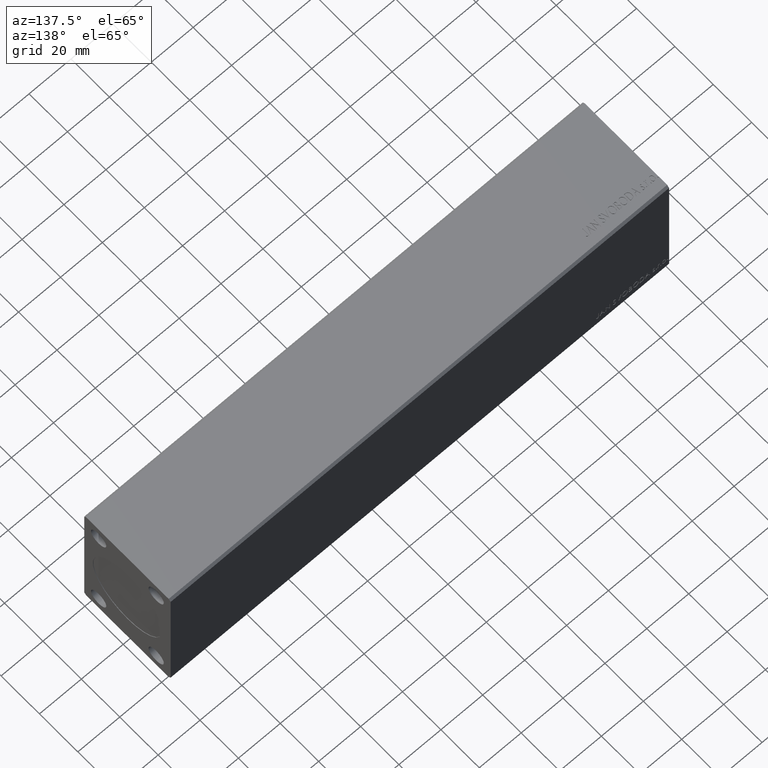
[diagram: clean part render]
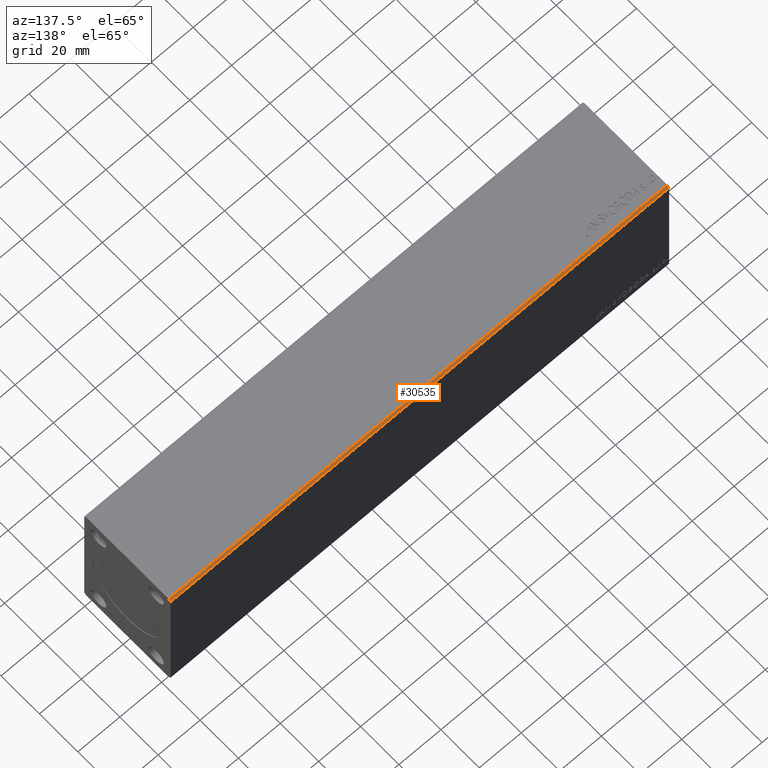
[diagram: same view with one face highlighted and labeled with its STEP entity id]
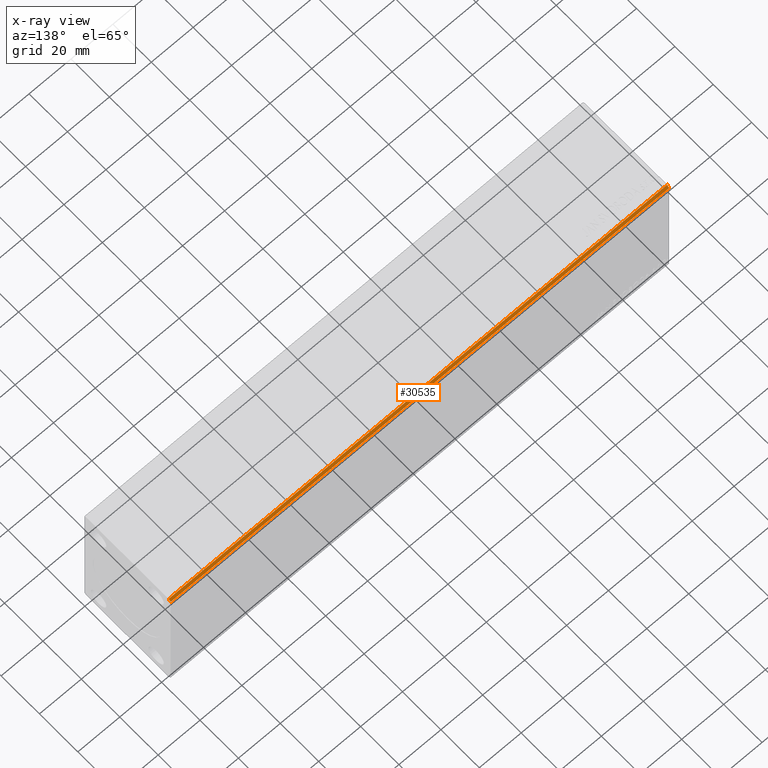
[diagram: x-ray of the same camera — body ghosted, the highlighted face saturated]
A machine part, auxiliary view. The second image highlights one B-rep face of the part: STEP entity #30535.
The next image is the same camera in x-ray: the body ghosted, the highlighted face saturated — about 0% of this face is hidden behind the body in this view.
In plain terms, the highlighted planar face has unit normal (0, -0.7071, -0.7071).
Its self-contained STEP definition (entity closure, byte-faithful):
#716 = CARTESIAN_POINT ( 'NONE',  ( 0.000000000000000000, 22.49999999999999645, 31.50000000000000000 ) ) ;
#850 = FACE_OUTER_BOUND ( 'NONE', #30455, .T. ) ;
#2761 = ORIENTED_EDGE ( 'NONE', *, *, #21707, .T. ) ;
#3548 = CARTESIAN_POINT ( 'NONE',  ( 238.0000000000000000, 22.49999999999999645, 31.50000000000000000 ) ) ;
#4324 = VECTOR ( 'NONE', #5366, 1000.000000000000114 ) ;
#5366 = DIRECTION ( 'NONE',  ( 0.000000000000000000, -0.7071067811865474617, 0.7071067811865474617 ) ) ;
#6226 = DIRECTION ( 'NONE',  ( -1.000000000000000000, -0.000000000000000000, -0.000000000000000000 ) ) ;
#8056 = CARTESIAN_POINT ( 'NONE',  ( 0.000000000000000000, 22.49999999999999645, 31.50000000000000000 ) ) ;
#8280 = LINE ( 'NONE', #8056, #12717 ) ;
#8488 = LINE ( 'NONE', #35471, #4324 ) ;
#9337 = AXIS2_PLACEMENT_3D ( 'NONE', #3548, #27626, #11111 ) ;
#11111 = DIRECTION ( 'NONE',  ( 0.000000000000000000, 0.7071067811865474617, -0.7071067811865474617 ) ) ;
#12665 = LINE ( 'NONE', #26283, #16681 ) ;
#12717 = VECTOR ( 'NONE', #32589, 1000.000000000000114 ) ;
#12889 = DIRECTION ( 'NONE',  ( -1.000000000000000000, -0.000000000000000000, -0.000000000000000000 ) ) ;
#15234 = VERTEX_POINT ( 'NONE', #18993 ) ;
#16681 = VECTOR ( 'NONE', #12889, 1000.000000000000000 ) ;
#18993 = CARTESIAN_POINT ( 'NONE',  ( 0.000000000000000000, 21.49999999999999645, 32.50000000000000000 ) ) ;
#19492 = VERTEX_POINT ( 'NONE', #716 ) ;
#20284 = LINE ( 'NONE', #40128, #40844 ) ;
#20441 = CARTESIAN_POINT ( 'NONE',  ( 238.0000000000000000, 21.49999999999999645, 32.50000000000000000 ) ) ;
#21707 = EDGE_CURVE ( 'NONE', #19492, #15234, #8280, .T. ) ;
#23952 = VERTEX_POINT ( 'NONE', #20441 ) ;
#26283 = CARTESIAN_POINT ( 'NONE',  ( 238.0000000000000000, 21.49999999999999645, 32.50000000000000000 ) ) ;
#27626 = DIRECTION ( 'NONE',  ( 0.000000000000000000, -0.7071067811865475727, -0.7071067811865475727 ) ) ;
#28434 = ORIENTED_EDGE ( 'NONE', *, *, #36715, .F. ) ;
#30455 = EDGE_LOOP ( 'NONE', ( #2761, #28434, #40075, #38892 ) ) ;
#30535 = ADVANCED_FACE ( 'NONE', ( #850 ), #41667, .F. ) ;
#31479 = EDGE_CURVE ( 'NONE', #42520, #23952, #8488, .T. ) ;
#32589 = DIRECTION ( 'NONE',  ( 0.000000000000000000, -0.7071067811865474617, 0.7071067811865474617 ) ) ;
#33329 = CARTESIAN_POINT ( 'NONE',  ( 238.0000000000000000, 22.49999999999999645, 31.50000000000000000 ) ) ;
#35471 = CARTESIAN_POINT ( 'NONE',  ( 238.0000000000000000, 22.49999999999999645, 31.50000000000000000 ) ) ;
#36715 = EDGE_CURVE ( 'NONE', #23952, #15234, #12665, .T. ) ;
#38892 = ORIENTED_EDGE ( 'NONE', *, *, #41956, .T. ) ;
#40075 = ORIENTED_EDGE ( 'NONE', *, *, #31479, .F. ) ;
#40128 = CARTESIAN_POINT ( 'NONE',  ( 238.0000000000000000, 22.49999999999999645, 31.50000000000000000 ) ) ;
#40844 = VECTOR ( 'NONE', #6226, 1000.000000000000000 ) ;
#41667 = PLANE ( 'NONE',  #9337 ) ;
#41956 = EDGE_CURVE ( 'NONE', #42520, #19492, #20284, .T. ) ;
#42520 = VERTEX_POINT ( 'NONE', #33329 ) ;